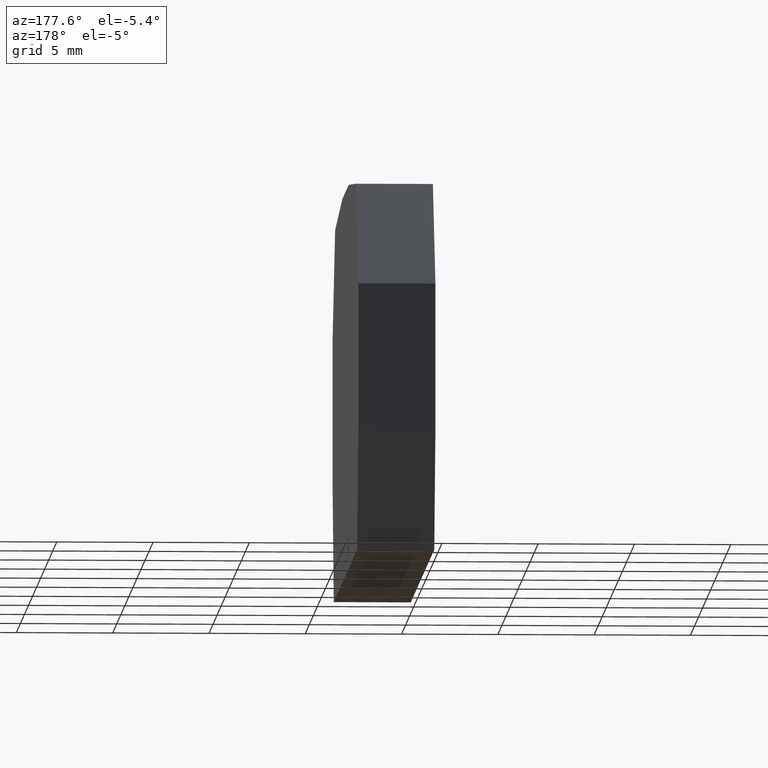
[diagram: clean part render]
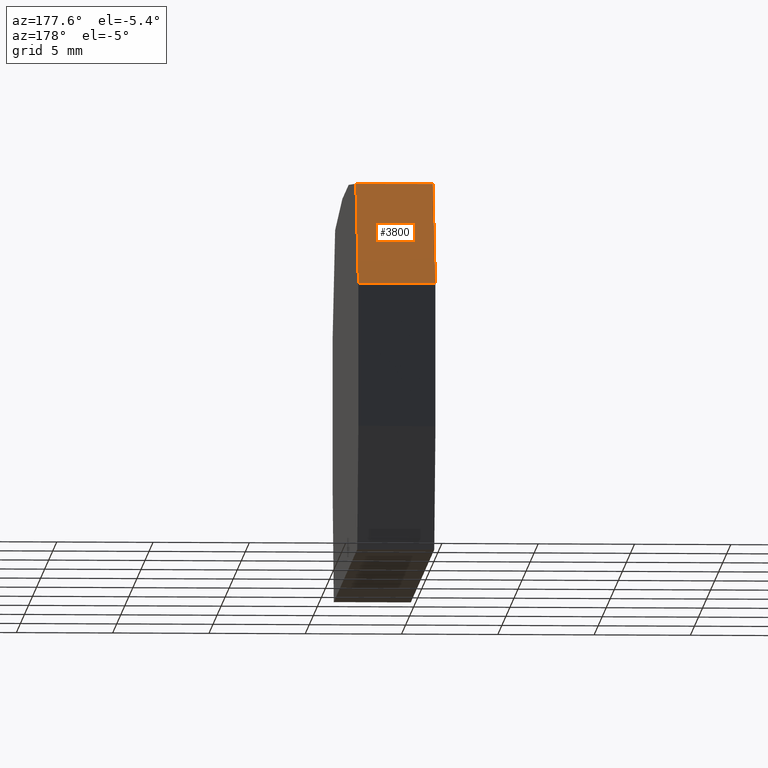
[diagram: same view with one face highlighted and labeled with its STEP entity id]
A machine part, auxiliary view. The second image highlights one B-rep face of the part: STEP entity #3800.
In plain terms, the highlighted planar face has unit normal (0, 0.866, 0.5).
Its self-contained STEP definition (entity closure, byte-faithful):
#520=CARTESIAN_POINT('',(9.63823821163448,86.1614734936074,
4.00000000000001));
#530=VERTEX_POINT('',#520);
#560=CARTESIAN_POINT('',(9.71575257865031,86.2957323155951,
4.00000000000001));
#570=DIRECTION('',(0.500000000000682,0.866025403784045,0.));
#580=VECTOR('',#570,1.);
#590=LINE('',#560,#580);
#600=CARTESIAN_POINT('',(6.47179503769135,80.6770330370682,
4.00000000000001));
#610=VERTEX_POINT('',#600);
#620=EDGE_CURVE('',#610,#530,#590,.T.);
#1230=CARTESIAN_POINT('',(6.47179503769135,80.6770330370682,
8.00000000000001));
#1240=VERTEX_POINT('',#1230);
#1270=CARTESIAN_POINT('',(9.71575257865031,86.2957323155951,
8.00000000000001));
#1280=DIRECTION('',(0.500000000000682,0.866025403784045,0.));
#1290=VECTOR('',#1280,1.);
#1300=LINE('',#1270,#1290);
#1310=CARTESIAN_POINT('',(9.63823821163448,86.1614734936074,
8.00000000000001));
#1320=VERTEX_POINT('',#1310);
#1330=EDGE_CURVE('',#1240,#1320,#1300,.T.);
#2570=CARTESIAN_POINT('',(9.63823821163448,86.1614734936074,
4.00000000000001));
#2580=DIRECTION('',(0.,0.,-1.));
#2590=VECTOR('',#2580,1.);
#2600=LINE('',#2570,#2590);
#2610=EDGE_CURVE('',#1320,#530,#2600,.T.);
#3260=CARTESIAN_POINT('',(6.47179503769135,80.6770330370682,
4.00000000000001));
#3270=DIRECTION('',(0.,0.,-1.));
#3280=VECTOR('',#3270,1.);
#3290=LINE('',#3260,#3280);
#3300=EDGE_CURVE('',#1240,#610,#3290,.T.);
#3690=CARTESIAN_POINT('',(6.73974423012289,81.1411346522058,
4.00000000000001));
#3700=DIRECTION('',(-0.866025403784045,0.500000000000682,0.));
#3710=DIRECTION('',(0.500000000000682,0.866025403784045,0.));
#3720=AXIS2_PLACEMENT_3D('',#3690,#3700,#3710);
#3730=PLANE('',#3720);
#3740=ORIENTED_EDGE('',*,*,#2610,.T.);
#3750=ORIENTED_EDGE('',*,*,#1330,.T.);
#3760=ORIENTED_EDGE('',*,*,#3300,.F.);
#3770=ORIENTED_EDGE('',*,*,#620,.F.);
#3780=EDGE_LOOP('',(#3770,#3760,#3750,#3740));
#3790=FACE_OUTER_BOUND('',#3780,.T.);
#3800=ADVANCED_FACE('',(#3790),#3730,.T.);